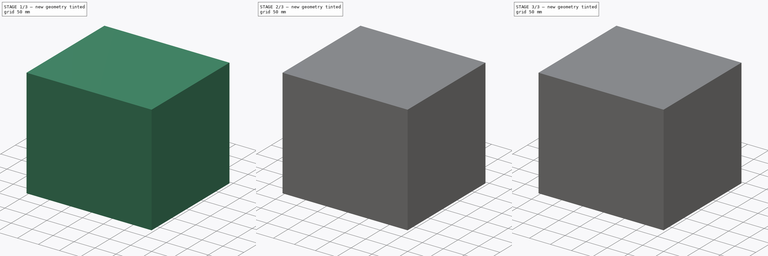
[diagram: build sequence overview — one tinted view per stage of 3, left to right]
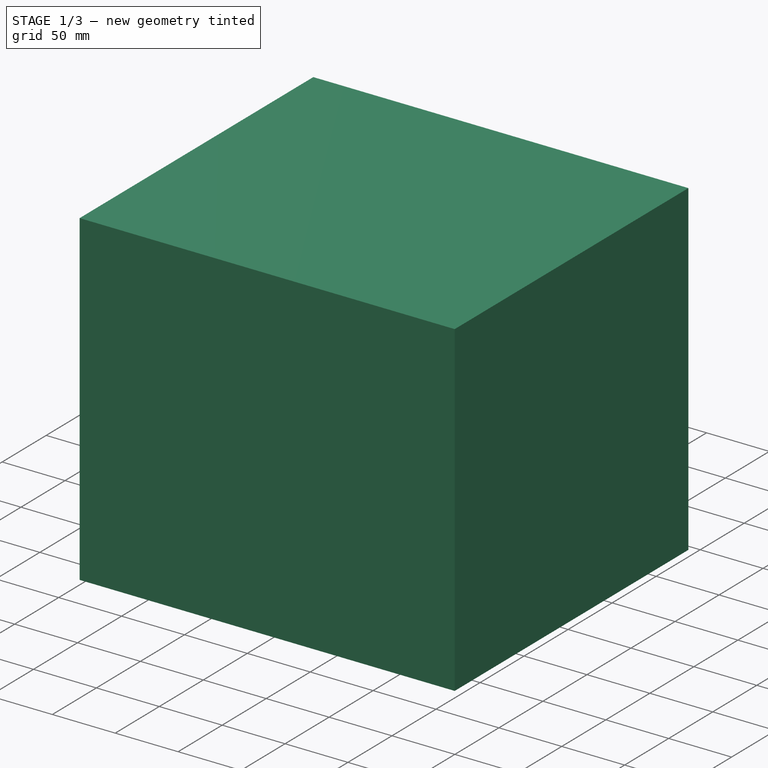
[diagram: stage 1 of 3 — iso view after this stage's code; geometry added in this stage tinted green]
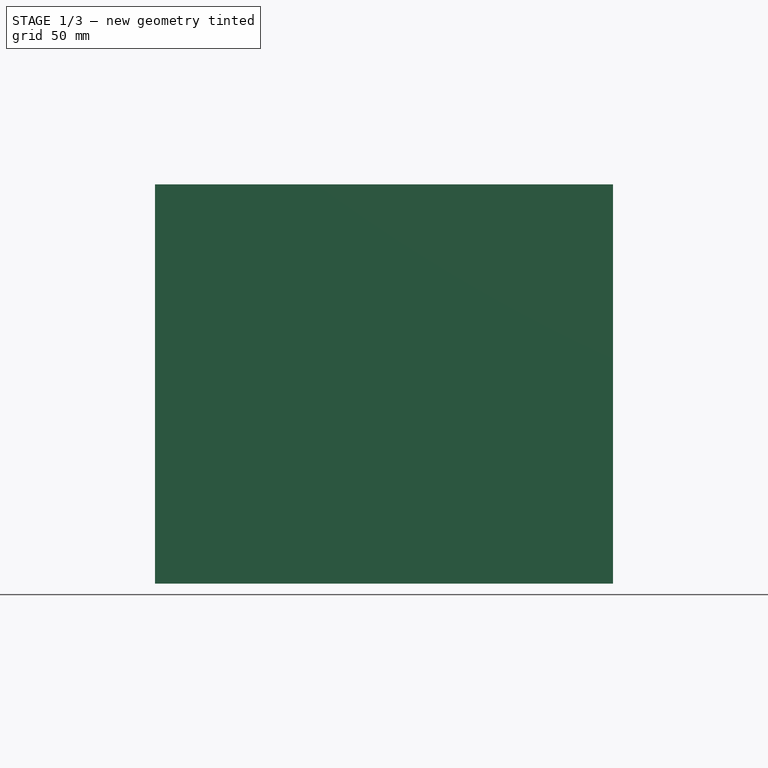
[diagram: stage 1 of 3 — front view after this stage's code; geometry added in this stage tinted green]
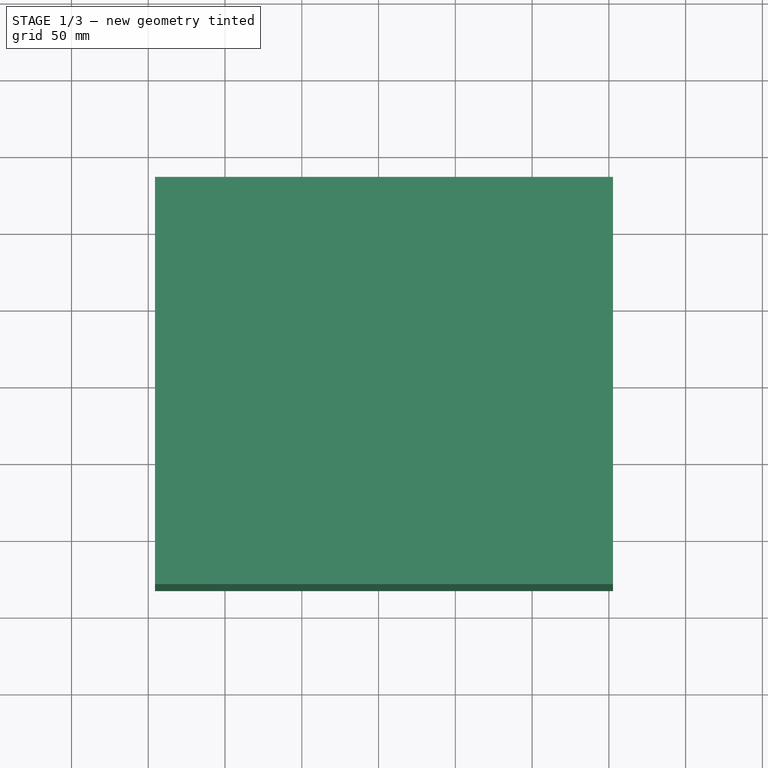
[diagram: stage 1 of 3 — top view after this stage's code; geometry added in this stage tinted green]
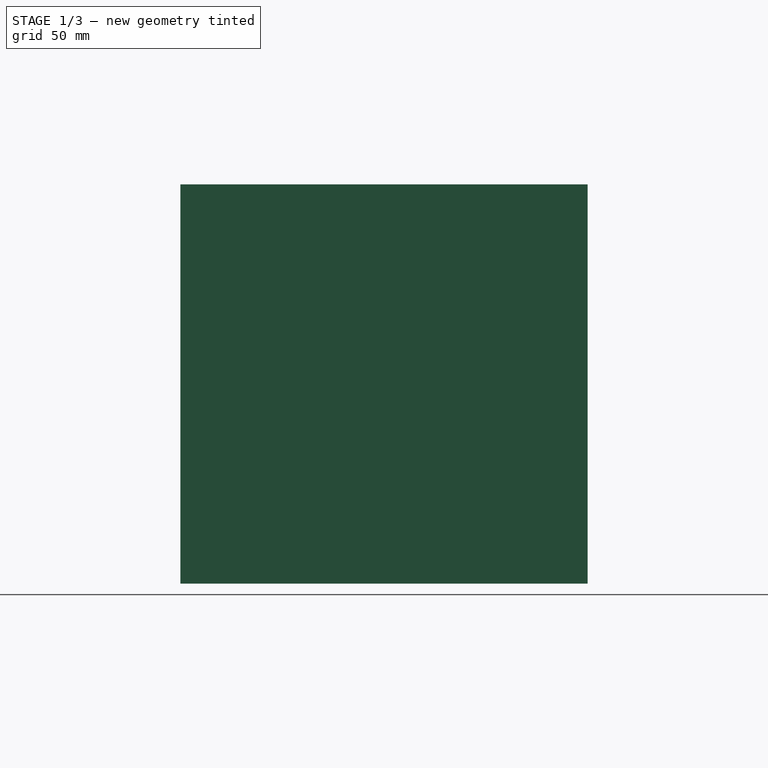
[diagram: stage 1 of 3 — right view after this stage's code; geometry added in this stage tinted green]
FCSTD DOCUMENT  (FreeCAD 0.20R29177 (Git))
Label: Discone Antenna
License: All rights reserved
LicenseURL: http://en.wikipedia.org/wiki/All_rights_reserved
objects: Sketcher::SketchObject×5, Part::Extrusion×3, PartDesign::Revolution×1, PartDesign::Body×1, Part::Cylinder×1
note: 12 computed .brp shape members not serialized (recipe doc carries the construction recipe); baked Part::Feature solids carry a one-line shape summary decoded from their .brp

FEATURE [Sketcher::SketchObject] Sketch002
  FullyConstrained = false
  Placement = pos=(0,0,20) rot=(0,0,1;0rad)
  sketch-geometry (4):
    g0: LineSegment StartX=-61.734 StartY=62.2469 StartZ=0 EndX=63.2164 EndY=62.2469 EndZ=0
    g1: LineSegment StartX=63.2164 StartY=62.2469 StartZ=0 EndX=63.2164 EndY=-60.5908 EndZ=0
    g2: LineSegment StartX=63.2164 StartY=-60.5908 StartZ=0 EndX=-61.734 EndY=-60.5908 EndZ=0
    g3: LineSegment StartX=-61.734 StartY=-60.5908 StartZ=0 EndX=-61.734 EndY=62.2469 EndZ=0
  constraints (8):
    c: Coincident(g0,g1)
    c: Coincident(g1,g2)
    c: Coincident(g2,g3)
    c: Coincident(g3,g0)
    c: Horizontal(g0)
    c: Horizontal(g2)
    c: Vertical(g1)
    c: Vertical(g3)
FEATURE [Part::Extrusion] Extrude001  label="simbox"
  Base = -> Sketch002
  Dir = (0,0,1)
  DirMode = 2
  FaceMakerClass = Part::FaceMakerBullseye
  LengthFwd = 160
  LengthRev = 0
  Placement = pos=(0,0,-95) rot=(0,0,1;0rad)
  Solid = true
  Symmetric = false
FEATURE [Sketcher::SketchObject] Sketch003
  FullyConstrained = false
  Placement = pos=(0,0,45) rot=(0,0,1;0rad)
  sketch-geometry (4):
    g0: LineSegment StartX=-145.576 StartY=132.812 StartZ=0 EndX=152.657 EndY=132.812 EndZ=0
    g1: LineSegment StartX=152.657 StartY=132.812 StartZ=0 EndX=152.657 EndY=-132.508 EndZ=0
    g2: LineSegment StartX=152.657 StartY=-132.508 StartZ=0 EndX=-145.576 EndY=-132.508 EndZ=0
    g3: LineSegment StartX=-145.576 StartY=-132.508 StartZ=0 EndX=-145.576 EndY=132.812 EndZ=0
  constraints (8):
    c: Coincident(g0,g1)
    c: Coincident(g1,g2)
    c: Coincident(g2,g3)
    c: Coincident(g3,g0)
    c: Horizontal(g0)
    c: Horizontal(g2)
    c: Vertical(g1)
    c: Vertical(g3)
FEATURE [Part::Extrusion] Extrude002  label="simbox2"
  Base = -> Sketch003
  Dir = (0,0,1)
  DirMode = 2
  FaceMakerClass = Part::FaceMakerBullseye
  LengthFwd = 260
  LengthRev = 0
  Placement = pos=(0,0,-20) rot=(0,0,1;0rad)
  Solid = true
  Symmetric = true
FEATURE [Sketcher::SketchObject] Sketch004  label="Et"
  FullyConstrained = false
  Placement = pos=(0,0,0) rot=(0.57735,0.57735,0.57735;2.0944rad)
  sketch-geometry (4):
    g0: LineSegment StartX=-107.8 StartY=107.526 StartZ=0 EndX=111.245 EndY=107.526 EndZ=0
    g1: LineSegment StartX=111.245 StartY=107.526 StartZ=0 EndX=111.245 EndY=-92.0486 EndZ=0
    g2: LineSegment StartX=111.245 StartY=-92.0486 StartZ=0 EndX=-107.8 EndY=-92.0486 EndZ=0
    g3: LineSegment StartX=-107.8 StartY=-92.0486 StartZ=0 EndX=-107.8 EndY=107.526 EndZ=0
  constraints (8):
    c: Coincident(g0,g1)
    c: Coincident(g1,g2)
    c: Coincident(g2,g3)
    c: Coincident(g3,g0)
    c: Horizontal(g0)
    c: Horizontal(g2)
    c: Vertical(g1)
    c: Vertical(g3)
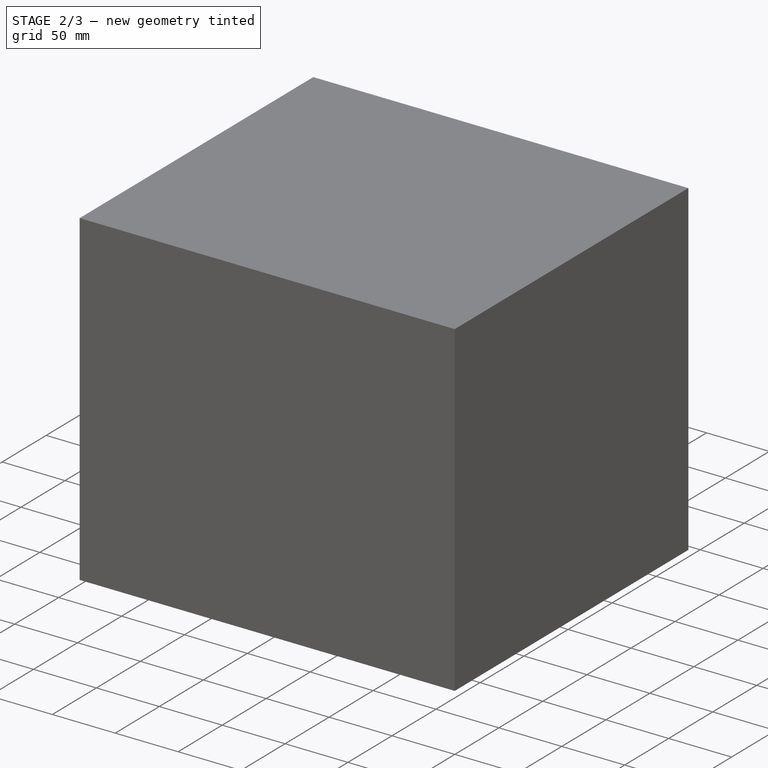
[diagram: stage 2 of 3 — iso view after this stage's code; geometry added in this stage tinted green]
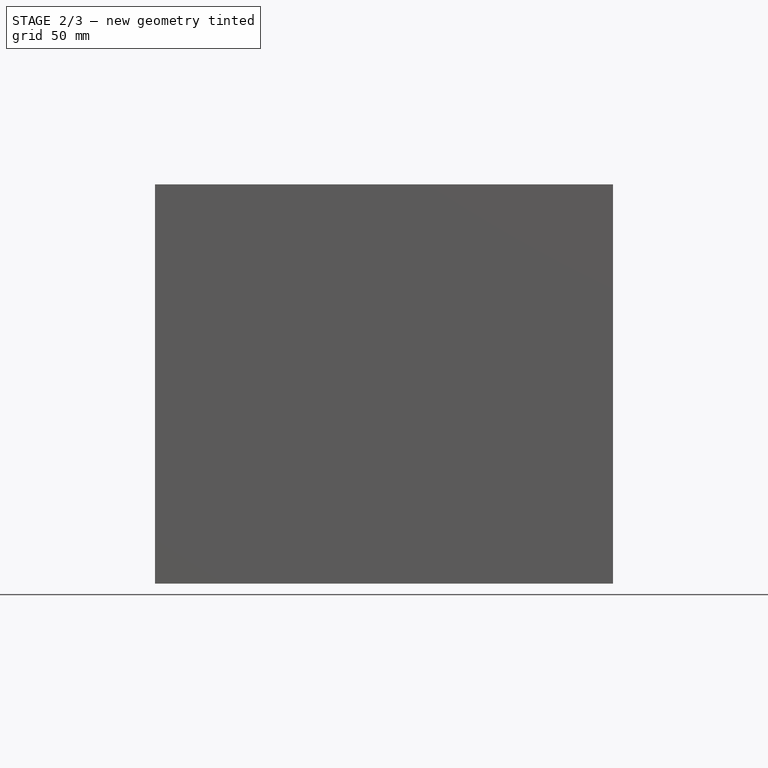
[diagram: stage 2 of 3 — front view after this stage's code; geometry added in this stage tinted green]
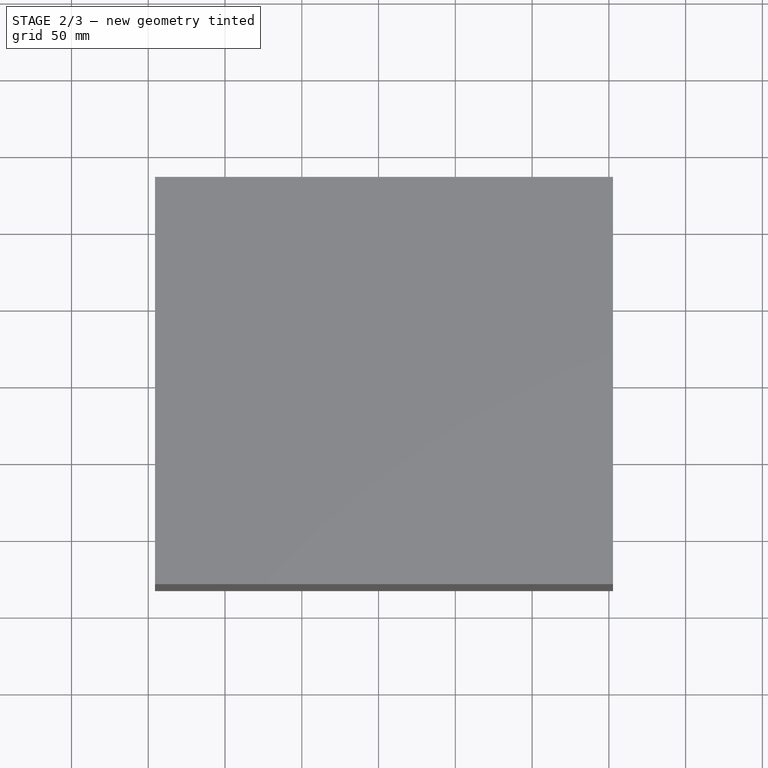
[diagram: stage 2 of 3 — top view after this stage's code; geometry added in this stage tinted green]
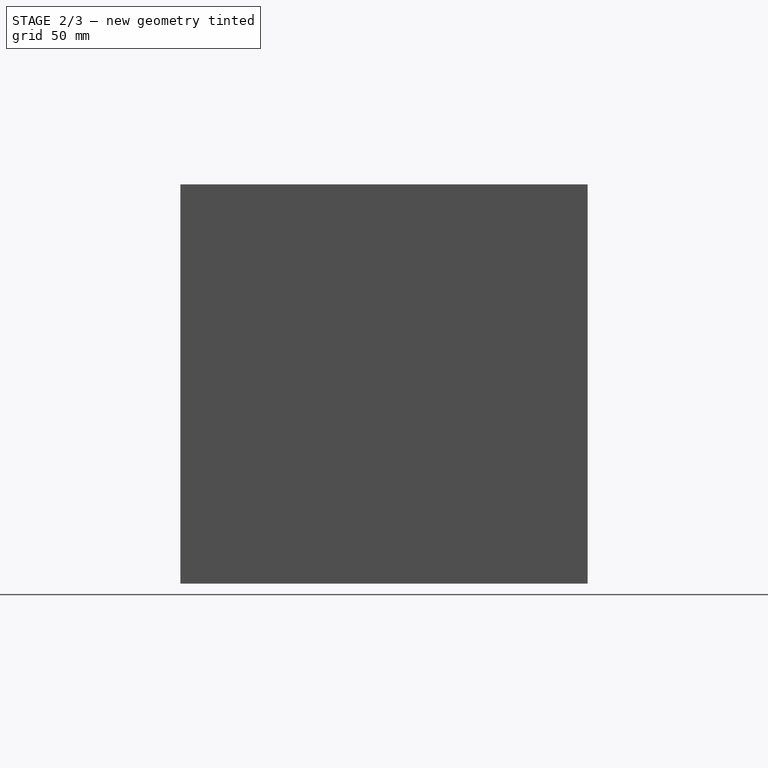
[diagram: stage 2 of 3 — right view after this stage's code; geometry added in this stage tinted green]
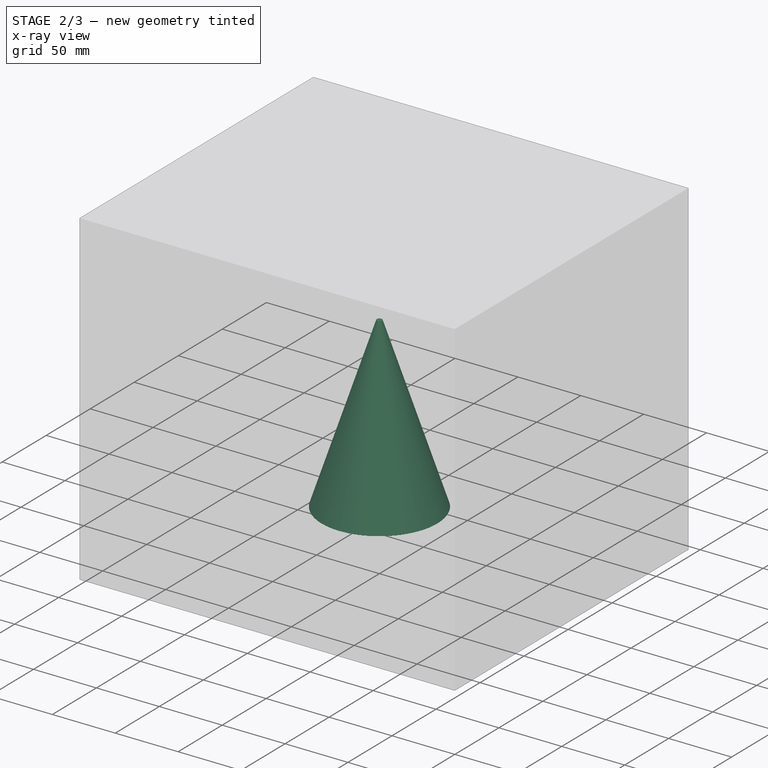
[diagram: stage 2 of 3 — x-ray composite at the iso view; earlier geometry ghosted, this stage's added geometry solid]
FEATURE [Sketcher::SketchObject] Sketch
  FullyConstrained = false
  Placement = pos=(0,0,0) rot=(0.57735,0.57735,0.57735;2.0944rad)
  sketch-geometry (6):
    g0: LineSegment StartX=-45 StartY=-63.9737 StartZ=0 EndX=-46 EndY=-63.9737 EndZ=0
    g1: LineSegment StartX=-46 StartY=-63.9737 StartZ=0 EndX=-2.1 EndY=70.2914 EndZ=0
    g2: LineSegment StartX=-2.1 StartY=70.2914 StartZ=0 EndX=0 EndY=70.2914 EndZ=0
    g3: LineSegment StartX=0 StartY=69.2914 StartZ=0 EndX=-2.1 EndY=69.2914 EndZ=0
    g4: LineSegment StartX=-2.1 StartY=69.2914 StartZ=0 EndX=-45 EndY=-63.9737 EndZ=0
    g5: LineSegment StartX=0 StartY=69.2914 StartZ=0 EndX=0 EndY=70.2914 EndZ=0
  constraints (17):
    c: Horizontal(g0)
    c: Coincident(g0,g1)
    c: Coincident(g1,g2)
    c: Horizontal(g2)
    c: Horizontal(g3)
    c: Coincident(g3,g4)
    c: Coincident(g4,g0)
    c: PointOnObject(g2,g-2)
    c: Coincident(g5,g3)
    c: Coincident(g5,g2)
    c: Vertical(g5)
    c: Distance(g0) = 1
    c: Distance(g4) = 140
    c: Distance(g5) = 1
    c: Vertical(g1,g3)
    c: Distance(g3) = 2.1
    c: DistanceX(g0,g-1) = 45
FEATURE [PartDesign::Revolution] Revolution  label="discone antenna"
  Angle = 360
  Axis = (0,0,1)
  Base = (0,0,0)
  Placement = pos=(0,0,0) rot=(0.57735,0.57735,0.57735;2.0944rad)
  Profile = -> Sketch
  ReferenceAxis = -> Sketch [V_Axis]
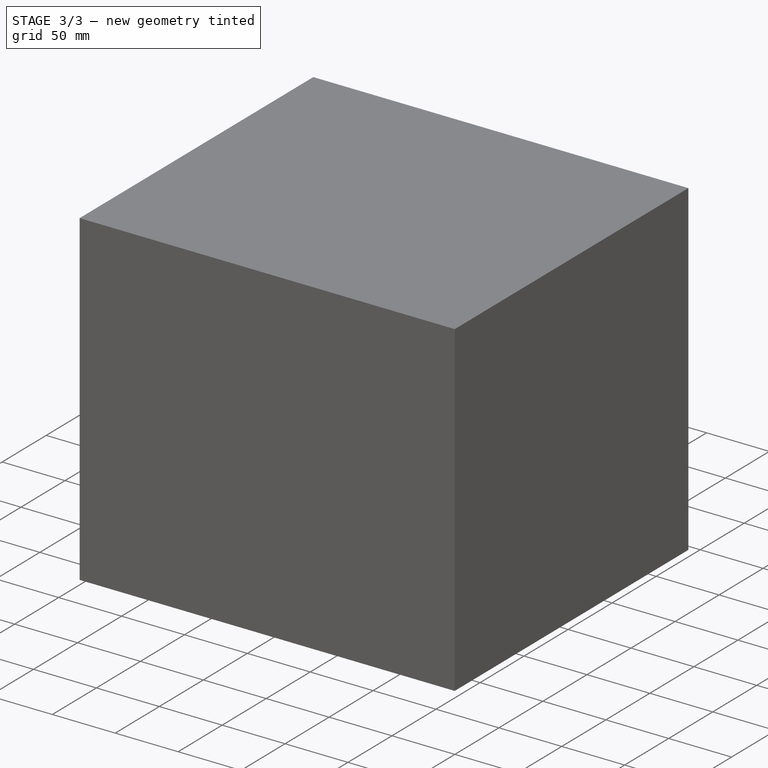
[diagram: stage 3 of 3 — iso view after this stage's code; geometry added in this stage tinted green]
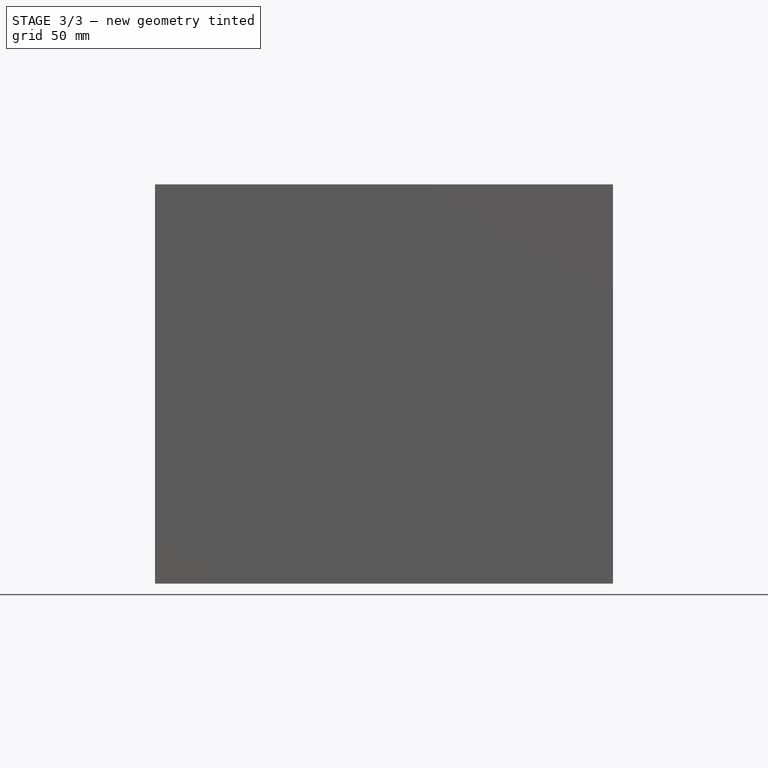
[diagram: stage 3 of 3 — front view after this stage's code; geometry added in this stage tinted green]
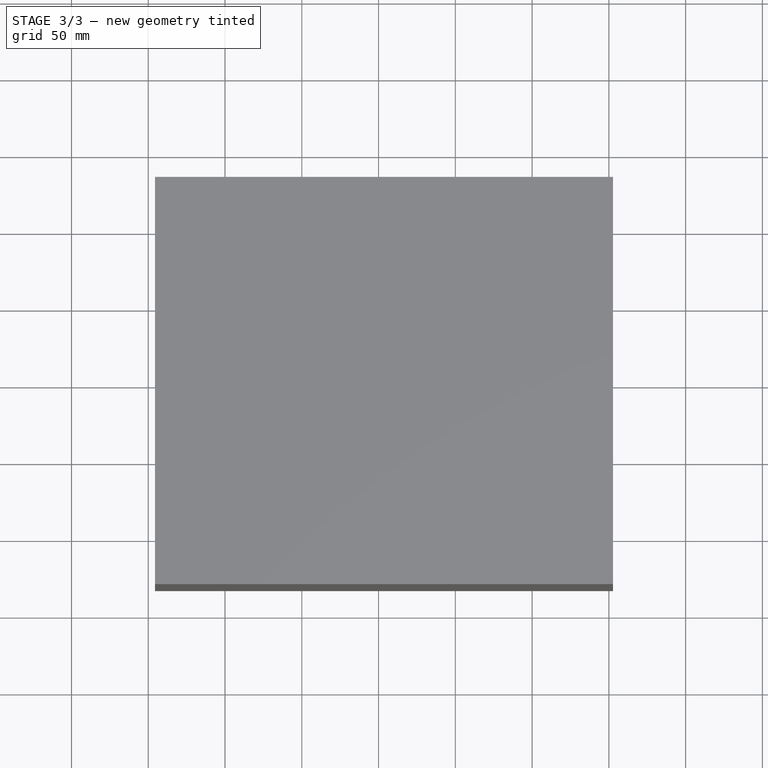
[diagram: stage 3 of 3 — top view after this stage's code; geometry added in this stage tinted green]
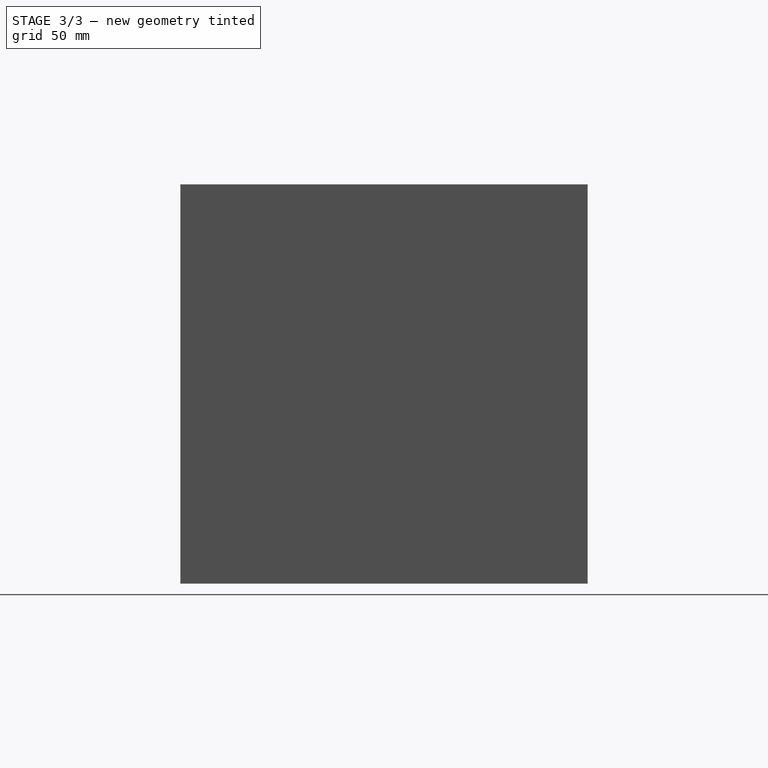
[diagram: stage 3 of 3 — right view after this stage's code; geometry added in this stage tinted green]
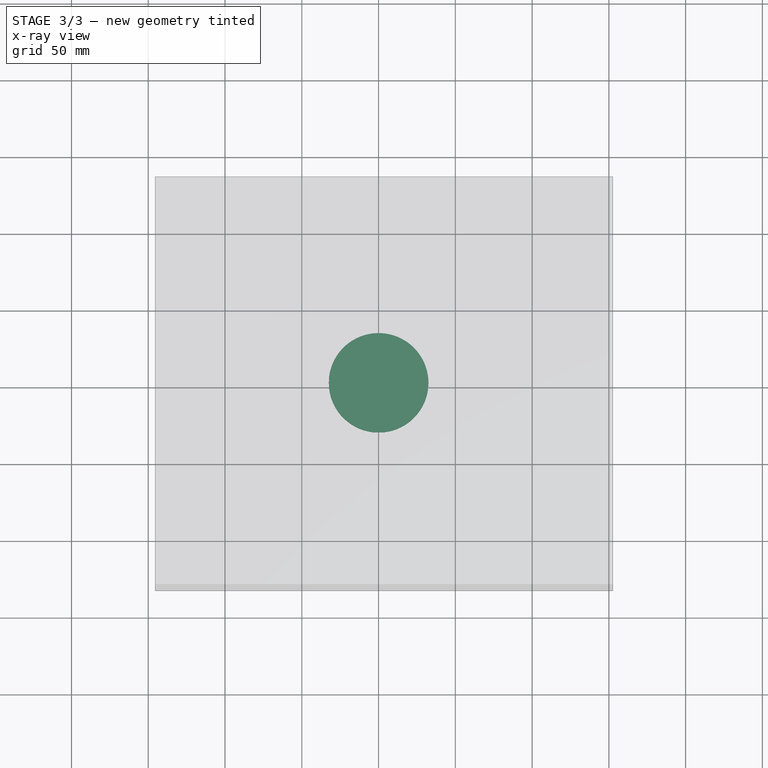
[diagram: stage 3 of 3 — x-ray composite at the top view; earlier geometry ghosted, this stage's added geometry solid]
FEATURE [PartDesign::Body] Body
  Group = -> [Sketch,Revolution]
  Origin = -> Origin
  Tip = -> Revolution
FEATURE [Part::Cylinder] Cylinder  label="gnd plate"
  Angle = 360
  AttacherType = Attacher::AttachEngine3D
  FirstAngle = 0
  Height = 1
  Placement = pos=(0,0,71.5) rot=(0,0,1;0rad)
  Radius = 32.5
  SecondAngle = 0
FEATURE [Sketcher::SketchObject] Sketch001
  FullyConstrained = true
  MapMode = 5
  Placement = pos=(0,3.9e-15,70.2914) rot=(0,0,-1;1.5708rad)
  Support = -> [Revolution]
  sketch-geometry (1):
    g0: Circle CenterX=0 CenterY=0 CenterZ=0 NormalX=0 NormalY=0 NormalZ=1 AngleXU=0 Radius=2
  constraints (2):
    c: Coincident(g0,g-1)
    c: Diameter(g0) = 4
FEATURE [Part::Extrusion] Extrude  label="port in"
  Base = -> Sketch001
  Dir = (0,1e-16,1)
  DirMode = 2
  FaceMakerClass = Part::FaceMakerBullseye
  LengthFwd = 3.2
  LengthRev = 0
  Placement = pos=(0,0,-1) rot=(0,0,1;0rad)
  Solid = true
  Symmetric = false
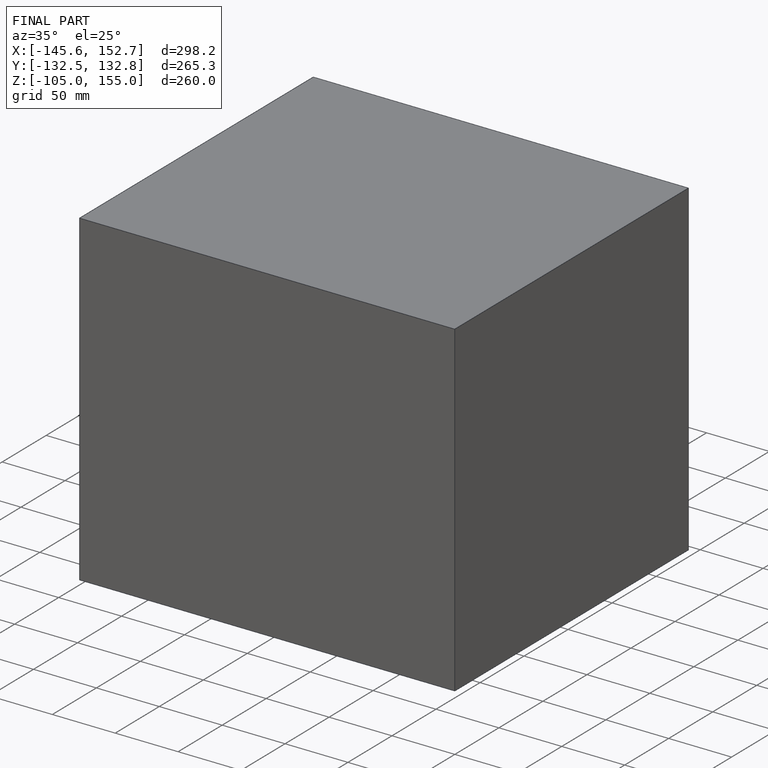
[diagram: finished part — iso view with bounding-box wireframe]
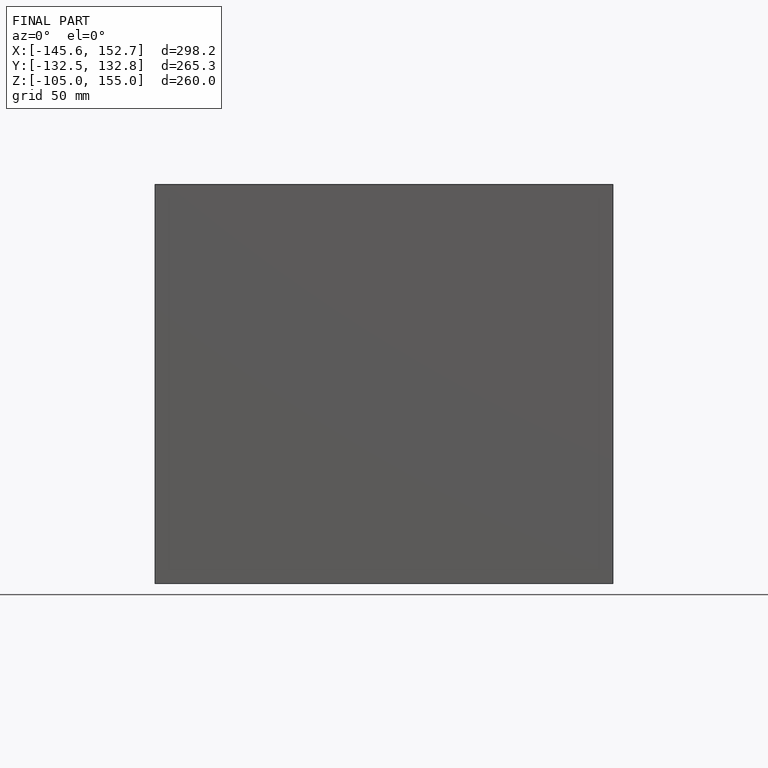
[diagram: finished part — front view with bounding-box wireframe]
